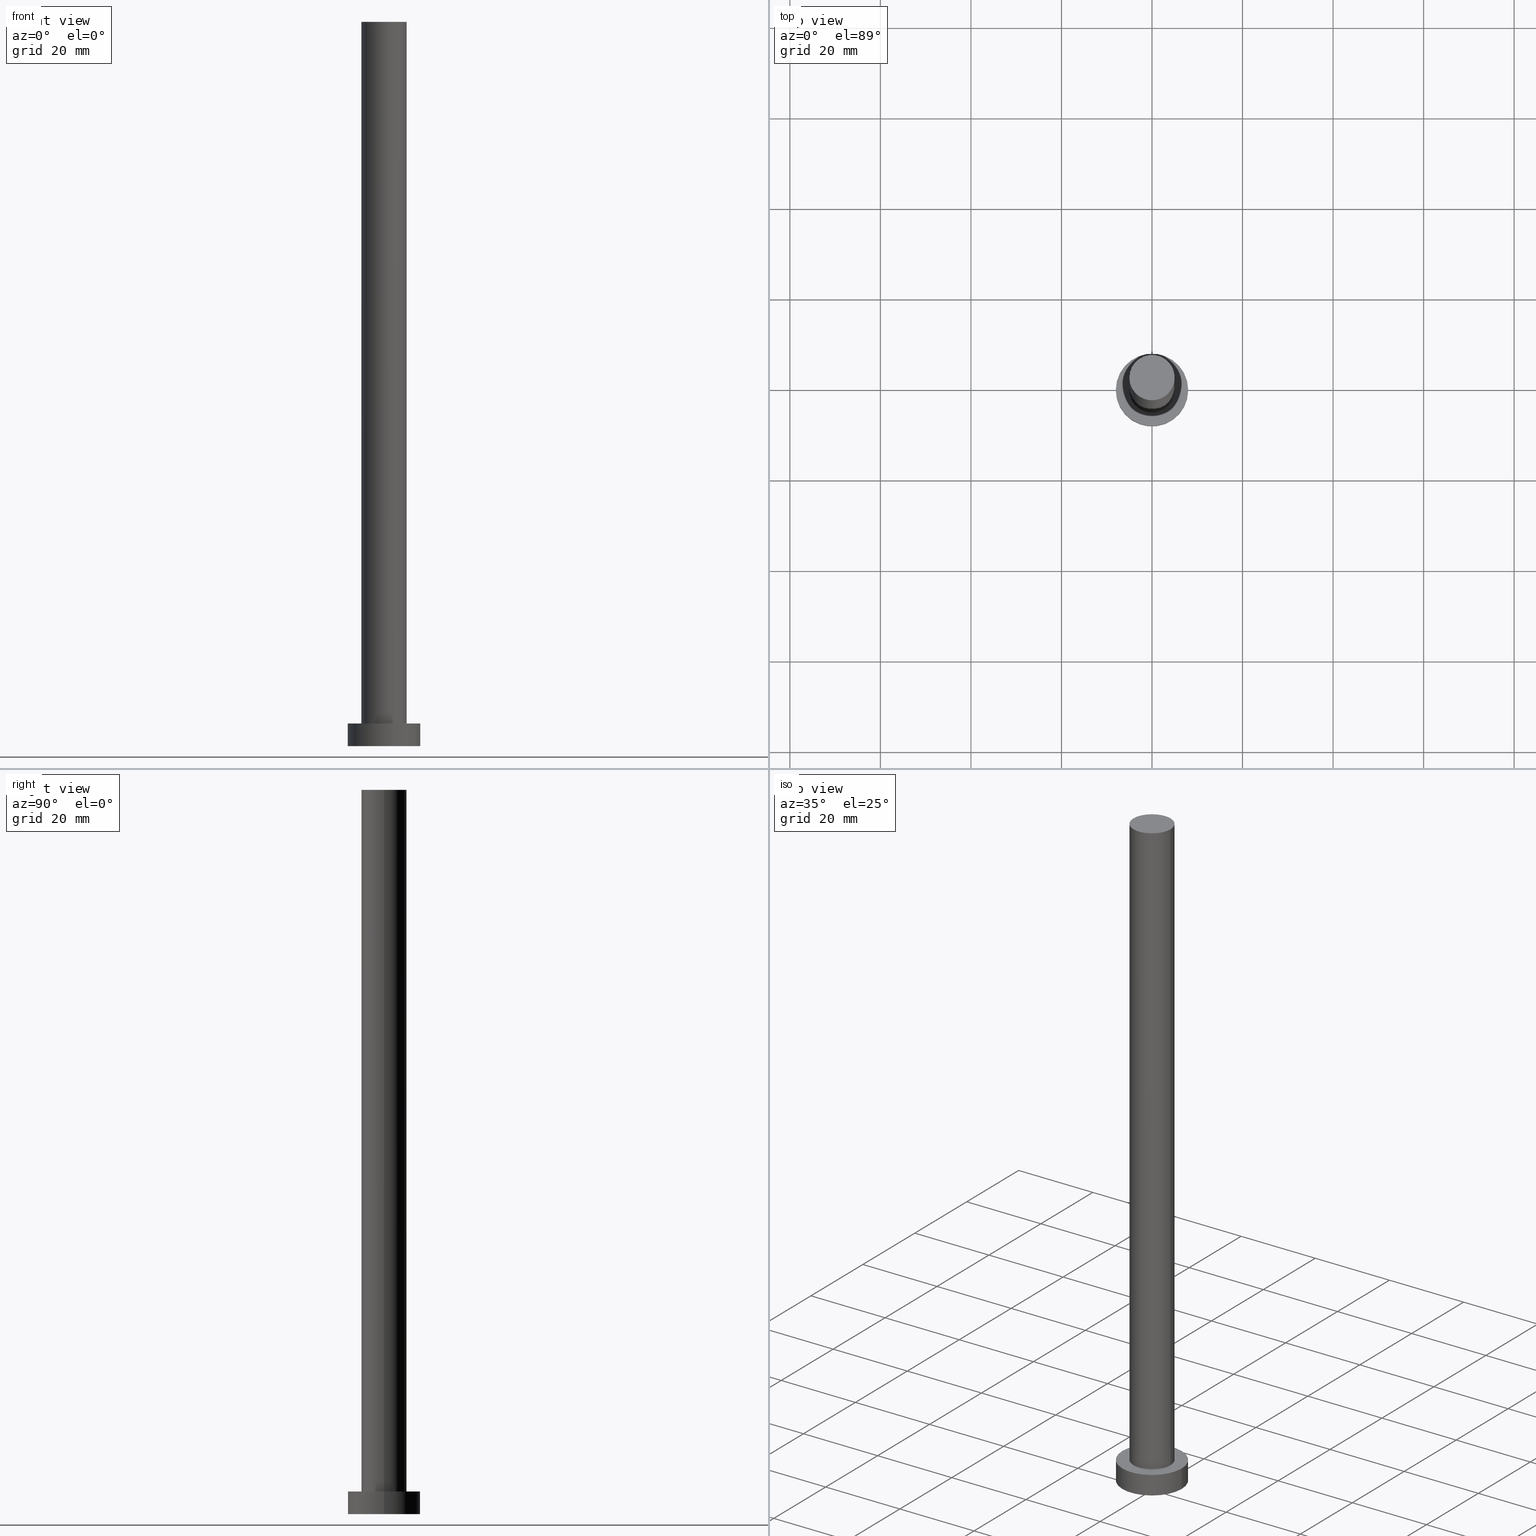
[diagram: canonical four-view strip — front | top / right | iso, engineering-drawing reading convention]
A machine part, canonical four-view strip (front | top / right | iso — engineering-drawing reading convention). The complete STEP part file that produces these views, byte-faithful:
ISO-10303-21;
HEADER;
FILE_DESCRIPTION (( 'STEP AP203' ),
    '1' );
FILE_NAME ('e7aa.STEP',
    '2023-02-13T12:07:02',
    ( '' ),
    ( '' ),
    'SwSTEP 2.0',
    'SolidWorks 2019',
    '' );
FILE_SCHEMA (( 'CONFIG_CONTROL_DESIGN' ));
ENDSEC;

DATA;
#1 = LOCAL_TIME ( 13, 7, 2.000000000000000000, #153 ) ;
#2 = DIRECTION ( 'NONE',  ( -0.000000000000000000, -0.000000000000000000, -1.000000000000000000 ) ) ;
#3 = PLANE ( 'NONE',  #34 ) ;
#4 = CARTESIAN_POINT ( 'NONE',  ( 0.000000000000000000, 0.000000000000000000, 5.000000000000000000 ) ) ;
#5 = CYLINDRICAL_SURFACE ( 'NONE', #172, 8.000000000000000000 ) ;
#6 = EDGE_LOOP ( 'NONE', ( #243, #186, #138, #253 ) ) ;
#7 = CC_DESIGN_APPROVAL ( #93, ( #249 ) ) ;
#8 = APPROVAL_STATUS ( 'not_yet_approved' ) ;
#9 = APPROVAL_ROLE ( '' ) ;
#10 = AXIS2_PLACEMENT_3D ( 'NONE', #21, #143, #208 ) ;
#11 = DIRECTION ( 'NONE',  ( 0.000000000000000000, 0.000000000000000000, 1.000000000000000000 ) ) ;
#12 = VECTOR ( 'NONE', #132, 1000.000000000000000 ) ;
#13 = ADVANCED_BREP_SHAPE_REPRESENTATION ( 'e7aa', ( #100, #202 ), #145 ) ;
#14 = DIRECTION ( 'NONE',  ( 1.000000000000000000, 0.000000000000000000, 0.000000000000000000 ) ) ;
#15 = APPROVAL_ROLE ( '' ) ;
#16 = VERTEX_POINT ( 'NONE', #199 ) ;
#17 = ORIENTED_EDGE ( 'NONE', *, *, #79, .F. ) ;
#18 = DATE_TIME_ROLE ( 'classification_date' ) ;
#19 = SECURITY_CLASSIFICATION_LEVEL ( 'unclassified' ) ;
#20 = EDGE_CURVE ( 'NONE', #16, #160, #62, .T. ) ;
#21 = CARTESIAN_POINT ( 'NONE',  ( 0.000000000000000000, 0.000000000000000000, 160.0000000000000000 ) ) ;
#22 = VECTOR ( 'NONE', #220, 1000.000000000000000 ) ;
#23 = CARTESIAN_POINT ( 'NONE',  ( -8.000000000000000000, 0.000000000000000000, 0.000000000000000000 ) ) ;
#24 = VERTEX_POINT ( 'NONE', #23 ) ;
#25 = ADVANCED_FACE ( 'NONE', ( #225 ), #60, .T. ) ;
#26 = FACE_OUTER_BOUND ( 'NONE', #128, .T. ) ;
#27 = CLOSED_SHELL ( 'NONE', ( #46, #32, #25, #61, #206, #106, #156 ) ) ;
#28 = ORIENTED_EDGE ( 'NONE', *, *, #77, .F. ) ;
#29 = PERSON_AND_ORGANIZATION_ROLE ( 'design_owner' ) ;
#30 = CARTESIAN_POINT ( 'NONE',  ( -5.000000000000000888, 0.000000000000000000, 160.0000000000000000 ) ) ;
#31 = CARTESIAN_POINT ( 'NONE',  ( 0.000000000000000000, 0.000000000000000000, 160.0000000000000000 ) ) ;
#32 = ADVANCED_FACE ( 'NONE', ( #44 ), #5, .T. ) ;
#33 = DATE_TIME_ROLE ( 'creation_date' ) ;
#34 = AXIS2_PLACEMENT_3D ( 'NONE', #66, #83, #221 ) ;
#35 = ORIENTED_EDGE ( 'NONE', *, *, #71, .F. ) ;
#36 = DATE_AND_TIME ( #175, #133 ) ;
#37 = PERSON_AND_ORGANIZATION ( #185, #90 ) ;
#38 = EDGE_CURVE ( 'NONE', #122, #124, #76, .T. ) ;
#39 = CIRCLE ( 'NONE', #149, 8.000000000000000000 ) ;
#40 = CARTESIAN_POINT ( 'NONE',  ( 0.000000000000000000, 0.000000000000000000, 160.0000000000000000 ) ) ;
#41 = EDGE_LOOP ( 'NONE', ( #17, #154, #101, #121 ) ) ;
#42 = DIRECTION ( 'NONE',  ( -0.000000000000000000, -0.000000000000000000, -1.000000000000000000 ) ) ;
#43 = LOCAL_TIME ( 13, 7, 2.000000000000000000, #55 ) ;
#44 = FACE_OUTER_BOUND ( 'NONE', #73, .T. ) ;
#45 = CARTESIAN_POINT ( 'NONE',  ( -8.000000000000000000, 0.000000000000000000, 5.000000000000000000 ) ) ;
#46 = ADVANCED_FACE ( 'NONE', ( #146 ), #162, .T. ) ;
#47 = DIRECTION ( 'NONE',  ( -0.000000000000000000, -0.000000000000000000, -1.000000000000000000 ) ) ;
#48 =( NAMED_UNIT ( * ) PLANE_ANGLE_UNIT ( ) SI_UNIT ( $, .RADIAN. ) );
#49 = CARTESIAN_POINT ( 'NONE',  ( -5.000000000000000888, 0.000000000000000000, 5.000000000000000000 ) ) ;
#50 = CC_DESIGN_APPROVAL ( #211, ( #78 ) ) ;
#51 = DIRECTION ( 'NONE',  ( 0.000000000000000000, 0.000000000000000000, 1.000000000000000000 ) ) ;
#52 = PRODUCT_DEFINITION_SHAPE ( 'NONE', 'NONE',  #249 ) ;
#53 = CIRCLE ( 'NONE', #200, 8.000000000000000000 ) ;
#54 = AXIS2_PLACEMENT_3D ( 'NONE', #148, #134, #114 ) ;
#55 = COORDINATED_UNIVERSAL_TIME_OFFSET ( 1, 0, .AHEAD. ) ;
#56 = EDGE_LOOP ( 'NONE', ( #87, #110 ) ) ;
#57 = APPROVAL_DATE_TIME ( #36, #65 ) ;
#58 = CC_DESIGN_SECURITY_CLASSIFICATION ( #78, ( #191 ) ) ;
#59 = CARTESIAN_POINT ( 'NONE',  ( 0.000000000000000000, 0.000000000000000000, 0.000000000000000000 ) ) ;
#60 = CYLINDRICAL_SURFACE ( 'NONE', #231, 8.000000000000000000 ) ;
#61 = ADVANCED_FACE ( 'NONE', ( #224, #26 ), #3, .T. ) ;
#62 = LINE ( 'NONE', #129, #163 ) ;
#63 = AXIS2_PLACEMENT_3D ( 'NONE', #31, #227, #151 ) ;
#64 = ORIENTED_EDGE ( 'NONE', *, *, #79, .T. ) ;
#65 = APPROVAL ( #193, 'NEUR�EN�' ) ;
#66 = CARTESIAN_POINT ( 'NONE',  ( 0.000000000000000000, 0.000000000000000000, 5.000000000000000000 ) ) ;
#67 = CARTESIAN_POINT ( 'NONE',  ( 8.000000000000000000, 9.797174393178825657E-16, 5.000000000000000000 ) ) ;
#68 = COORDINATED_UNIVERSAL_TIME_OFFSET ( 1, 0, .AHEAD. ) ;
#69 = DIRECTION ( 'NONE',  ( 0.000000000000000000, 0.000000000000000000, 1.000000000000000000 ) ) ;
#70 = FACE_OUTER_BOUND ( 'NONE', #241, .T. ) ;
#71 = EDGE_CURVE ( 'NONE', #180, #24, #212, .T. ) ;
#72 = PERSON_AND_ORGANIZATION_ROLE ( 'classification_officer' ) ;
#73 = EDGE_LOOP ( 'NONE', ( #255, #105, #234, #28 ) ) ;
#74 = APPROVAL_ROLE ( '' ) ;
#75 = DATE_AND_TIME ( #195, #223 ) ;
#76 = CIRCLE ( 'NONE', #94, 8.000000000000000000 ) ;
#77 = EDGE_CURVE ( 'NONE', #124, #24, #142, .T. ) ;
#78 = SECURITY_CLASSIFICATION ( '', '', #19 ) ;
#79 = EDGE_CURVE ( 'NONE', #16, #176, #167, .T. ) ;
#80 = CC_DESIGN_PERSON_AND_ORGANIZATION_ASSIGNMENT ( #196, #251, ( #191 ) ) ;
#81 = DIRECTION ( 'NONE',  ( -1.000000000000000000, 0.000000000000000000, 0.000000000000000000 ) ) ;
#82 = AXIS2_PLACEMENT_3D ( 'NONE', #169, #11, #111 ) ;
#83 = DIRECTION ( 'NONE',  ( 0.000000000000000000, 0.000000000000000000, 1.000000000000000000 ) ) ;
#84 = DIRECTION ( 'NONE',  ( 1.000000000000000000, 0.000000000000000000, 0.000000000000000000 ) ) ;
#85 = CARTESIAN_POINT ( 'NONE',  ( 0.000000000000000000, 0.000000000000000000, 5.000000000000000000 ) ) ;
#86 = EDGE_CURVE ( 'NONE', #124, #122, #53, .T. ) ;
#87 = ORIENTED_EDGE ( 'NONE', *, *, #236, .F. ) ;
#88 = DIRECTION ( 'NONE',  ( 0.000000000000000000, 0.000000000000000000, 1.000000000000000000 ) ) ;
#89 = FACE_OUTER_BOUND ( 'NONE', #117, .T. ) ;
#90 = ORGANIZATION ( 'NEUR�EN�', 'NEUR�EN�', '' ) ;
#91 = DIRECTION ( 'NONE',  ( 1.000000000000000000, 0.000000000000000000, -0.000000000000000000 ) ) ;
#92 =( LENGTH_UNIT ( ) NAMED_UNIT ( * ) SI_UNIT ( .MILLI., .METRE. ) );
#93 = APPROVAL ( #8, 'NEUR�EN�' ) ;
#94 = AXIS2_PLACEMENT_3D ( 'NONE', #182, #165, #204 ) ;
#95 = COORDINATED_UNIVERSAL_TIME_OFFSET ( 1, 0, .AHEAD. ) ;
#96 = APPROVAL_PERSON_ORGANIZATION ( #155, #65, #15 ) ;
#97 = DATE_AND_TIME ( #120, #43 ) ;
#98 = PRODUCT ( 'e7aa', 'e7aa', '', ( #152 ) ) ;
#99 = ORIENTED_EDGE ( 'NONE', *, *, #141, .F. ) ;
#100 = MANIFOLD_SOLID_BREP ( 'P�idat vysunut�m3', #27 ) ;
#101 = ORIENTED_EDGE ( 'NONE', *, *, #250, .T. ) ;
#102 = APPROVAL_STATUS ( 'not_yet_approved' ) ;
#103 = DATE_AND_TIME ( #136, #1 ) ;
#104 = CC_DESIGN_PERSON_AND_ORGANIZATION_ASSIGNMENT ( #37, #72, ( #78 ) ) ;
#105 = ORIENTED_EDGE ( 'NONE', *, *, #118, .T. ) ;
#106 = ADVANCED_FACE ( 'NONE', ( #242 ), #161, .T. ) ;
#107 = DIRECTION ( 'NONE',  ( -0.000000000000000000, -0.000000000000000000, -1.000000000000000000 ) ) ;
#108 = ORIENTED_EDGE ( 'NONE', *, *, #118, .F. ) ;
#109 = ORIENTED_EDGE ( 'NONE', *, *, #141, .T. ) ;
#110 = ORIENTED_EDGE ( 'NONE', *, *, #250, .F. ) ;
#111 = DIRECTION ( 'NONE',  ( 1.000000000000000000, 0.000000000000000000, 0.000000000000000000 ) ) ;
#112 = DIRECTION ( 'NONE',  ( 1.000000000000000000, 0.000000000000000000, 0.000000000000000000 ) ) ;
#113 = APPROVAL_PERSON_ORGANIZATION ( #157, #211, #74 ) ;
#114 = DIRECTION ( 'NONE',  ( 1.000000000000000000, 0.000000000000000000, 0.000000000000000000 ) ) ;
#115 = CC_DESIGN_DATE_AND_TIME_ASSIGNMENT ( #97, #33, ( #249 ) ) ;
#116 = PERSON_AND_ORGANIZATION ( #185, #90 ) ;
#117 = EDGE_LOOP ( 'NONE', ( #99, #35 ) ) ;
#118 = EDGE_CURVE ( 'NONE', #122, #180, #203, .T. ) ;
#119 = COORDINATED_UNIVERSAL_TIME_OFFSET ( 1, 0, .AHEAD. ) ;
#120 = CALENDAR_DATE ( 2023, 13, 2 ) ;
#121 = ORIENTED_EDGE ( 'NONE', *, *, #178, .F. ) ;
#122 = VERTEX_POINT ( 'NONE', #189 ) ;
#123 = CC_DESIGN_DATE_AND_TIME_ASSIGNMENT ( #75, #18, ( #78 ) ) ;
#124 = VERTEX_POINT ( 'NONE', #190 ) ;
#125 = DIRECTION ( 'NONE',  ( 1.000000000000000000, 0.000000000000000000, 0.000000000000000000 ) ) ;
#126 = APPROVAL_PERSON_ORGANIZATION ( #188, #93, #9 ) ;
#127 = DIRECTION ( 'NONE',  ( -1.000000000000000000, 0.000000000000000000, 0.000000000000000000 ) ) ;
#128 = EDGE_LOOP ( 'NONE', ( #197, #237 ) ) ;
#129 = CARTESIAN_POINT ( 'NONE',  ( 5.000000000000000888, 6.123233995736767268E-16, 160.0000000000000000 ) ) ;
#130 = CARTESIAN_POINT ( 'NONE',  ( 0.000000000000000000, 0.000000000000000000, 5.000000000000000000 ) ) ;
#131 = CARTESIAN_POINT ( 'NONE',  ( 8.000000000000000000, 9.797174393178825657E-16, 0.000000000000000000 ) ) ;
#132 = DIRECTION ( 'NONE',  ( -0.000000000000000000, -0.000000000000000000, -1.000000000000000000 ) ) ;
#133 = LOCAL_TIME ( 13, 7, 2.000000000000000000, #95 ) ;
#134 = DIRECTION ( 'NONE',  ( 0.000000000000000000, 0.000000000000000000, 1.000000000000000000 ) ) ;
#135 = AXIS2_PLACEMENT_3D ( 'NONE', #59, #147, #125 ) ;
#136 = CALENDAR_DATE ( 2023, 13, 2 ) ;
#137 = APPROVAL_DATE_TIME ( #218, #93 ) ;
#138 = ORIENTED_EDGE ( 'NONE', *, *, #178, .T. ) ;
#139 = SHAPE_DEFINITION_REPRESENTATION ( #52, #13 ) ;
#140 = CC_DESIGN_PERSON_AND_ORGANIZATION_ASSIGNMENT ( #210, #29, ( #98 ) ) ;
#141 = EDGE_CURVE ( 'NONE', #24, #180, #39, .T. ) ;
#142 = LINE ( 'NONE', #45, #22 ) ;
#143 = DIRECTION ( 'NONE',  ( -0.000000000000000000, -0.000000000000000000, -1.000000000000000000 ) ) ;
#144 = CARTESIAN_POINT ( 'NONE',  ( 0.000000000000000000, 0.000000000000000000, 5.000000000000000000 ) ) ;
#145 =( GEOMETRIC_REPRESENTATION_CONTEXT ( 3 ) GLOBAL_UNCERTAINTY_ASSIGNED_CONTEXT ( ( #219 ) ) GLOBAL_UNIT_ASSIGNED_CONTEXT ( ( #92, #48, #226 ) ) REPRESENTATION_CONTEXT ( 'NONE', 'WORKASPACE' ) );
#146 = FACE_OUTER_BOUND ( 'NONE', #41, .T. ) ;
#147 = DIRECTION ( 'NONE',  ( 0.000000000000000000, 0.000000000000000000, 1.000000000000000000 ) ) ;
#148 = CARTESIAN_POINT ( 'NONE',  ( 0.000000000000000000, 0.000000000000000000, 5.000000000000000000 ) ) ;
#149 = AXIS2_PLACEMENT_3D ( 'NONE', #214, #69, #14 ) ;
#150 = APPLICATION_PROTOCOL_DEFINITION ( 'international standard', 'config_control_design', 1994, #192 ) ;
#151 = DIRECTION ( 'NONE',  ( 1.000000000000000000, 0.000000000000000000, -0.000000000000000000 ) ) ;
#152 = MECHANICAL_CONTEXT ( 'NONE', #192, 'mechanical' ) ;
#153 = COORDINATED_UNIVERSAL_TIME_OFFSET ( 1, 0, .AHEAD. ) ;
#154 = ORIENTED_EDGE ( 'NONE', *, *, #20, .T. ) ;
#155 = PERSON_AND_ORGANIZATION ( #185, #90 ) ;
#156 = ADVANCED_FACE ( 'NONE', ( #70 ), #230, .T. ) ;
#157 = PERSON_AND_ORGANIZATION ( #185, #90 ) ;
#158 = EDGE_LOOP ( 'NONE', ( #108, #198, #179, #109 ) ) ;
#159 = DIRECTION ( 'NONE',  ( -0.000000000000000000, -0.000000000000000000, -1.000000000000000000 ) ) ;
#160 = VERTEX_POINT ( 'NONE', #247 ) ;
#161 = CYLINDRICAL_SURFACE ( 'NONE', #194, 5.000000000000000888 ) ;
#162 = CYLINDRICAL_SURFACE ( 'NONE', #10, 5.000000000000000888 ) ;
#163 = VECTOR ( 'NONE', #2, 1000.000000000000000 ) ;
#164 = CIRCLE ( 'NONE', #82, 5.000000000000000888 ) ;
#165 = DIRECTION ( 'NONE',  ( 0.000000000000000000, 0.000000000000000000, 1.000000000000000000 ) ) ;
#166 = CARTESIAN_POINT ( 'NONE',  ( 0.000000000000000000, 0.000000000000000000, 0.000000000000000000 ) ) ;
#167 = CIRCLE ( 'NONE', #209, 5.000000000000000888 ) ;
#168 = AXIS2_PLACEMENT_3D ( 'NONE', #166, #88, #91 ) ;
#169 = CARTESIAN_POINT ( 'NONE',  ( 0.000000000000000000, 0.000000000000000000, 160.0000000000000000 ) ) ;
#170 = PLANE ( 'NONE',  #168 ) ;
#171 = CARTESIAN_POINT ( 'NONE',  ( -5.000000000000000888, 0.000000000000000000, 160.0000000000000000 ) ) ;
#172 = AXIS2_PLACEMENT_3D ( 'NONE', #85, #159, #240 ) ;
#173 = PERSON_AND_ORGANIZATION_ROLE ( 'creator' ) ;
#174 = PERSON_AND_ORGANIZATION_ROLE ( 'creator' ) ;
#175 = CALENDAR_DATE ( 2023, 13, 2 ) ;
#176 = VERTEX_POINT ( 'NONE', #30 ) ;
#177 = APPROVAL_DATE_TIME ( #103, #211 ) ;
#178 = EDGE_CURVE ( 'NONE', #176, #217, #215, .T. ) ;
#179 = ORIENTED_EDGE ( 'NONE', *, *, #77, .T. ) ;
#180 = VERTEX_POINT ( 'NONE', #131 ) ;
#181 = PRODUCT_RELATED_PRODUCT_CATEGORY ( 'detail', '', ( #98 ) ) ;
#182 = CARTESIAN_POINT ( 'NONE',  ( 0.000000000000000000, 0.000000000000000000, 5.000000000000000000 ) ) ;
#183 = DIRECTION ( 'NONE',  ( 1.000000000000000000, 0.000000000000000000, 0.000000000000000000 ) ) ;
#184 = DIRECTION ( 'NONE',  ( 0.000000000000000000, 0.000000000000000000, 1.000000000000000000 ) ) ;
#185 = PERSON ( 'NEUR�EN�', 'NEUR�EN�', 'NEUR�EN�', ('NEUR�EN�'), ('NEUR�EN�'), ('NEUR�EN�') ) ;
#186 = ORIENTED_EDGE ( 'NONE', *, *, #216, .F. ) ;
#187 = CIRCLE ( 'NONE', #54, 5.000000000000000888 ) ;
#188 = PERSON_AND_ORGANIZATION ( #185, #90 ) ;
#189 = CARTESIAN_POINT ( 'NONE',  ( 8.000000000000000000, 9.797174393178825657E-16, 5.000000000000000000 ) ) ;
#190 = CARTESIAN_POINT ( 'NONE',  ( -8.000000000000000000, 0.000000000000000000, 5.000000000000000000 ) ) ;
#191 = PRODUCT_DEFINITION_FORMATION_WITH_SPECIFIED_SOURCE ( 'LIBOVOLN�', '', #98, .NOT_KNOWN. ) ;
#192 = APPLICATION_CONTEXT ( 'configuration controlled 3d designs of mechanical parts and assemblies' ) ;
#193 = APPROVAL_STATUS ( 'not_yet_approved' ) ;
#194 = AXIS2_PLACEMENT_3D ( 'NONE', #222, #42, #127 ) ;
#195 = CALENDAR_DATE ( 2023, 13, 2 ) ;
#196 = PERSON_AND_ORGANIZATION ( #185, #90 ) ;
#197 = ORIENTED_EDGE ( 'NONE', *, *, #86, .T. ) ;
#198 = ORIENTED_EDGE ( 'NONE', *, *, #86, .F. ) ;
#199 = CARTESIAN_POINT ( 'NONE',  ( 5.000000000000000888, 6.123233995736767268E-16, 160.0000000000000000 ) ) ;
#200 = AXIS2_PLACEMENT_3D ( 'NONE', #4, #184, #84 ) ;
#201 = DIRECTION ( 'NONE',  ( 0.000000000000000000, 0.000000000000000000, 1.000000000000000000 ) ) ;
#202 = AXIS2_PLACEMENT_3D ( 'NONE', #244, #245, #248 ) ;
#203 = LINE ( 'NONE', #67, #12 ) ;
#204 = DIRECTION ( 'NONE',  ( 1.000000000000000000, 0.000000000000000000, 0.000000000000000000 ) ) ;
#205 = CC_DESIGN_PERSON_AND_ORGANIZATION_ASSIGNMENT ( #116, #174, ( #249 ) ) ;
#206 = ADVANCED_FACE ( 'NONE', ( #89 ), #170, .F. ) ;
#207 = DESIGN_CONTEXT ( 'detailed design', #229, 'design' ) ;
#208 = DIRECTION ( 'NONE',  ( -1.000000000000000000, 0.000000000000000000, 0.000000000000000000 ) ) ;
#209 = AXIS2_PLACEMENT_3D ( 'NONE', #40, #201, #183 ) ;
#210 = PERSON_AND_ORGANIZATION ( #185, #90 ) ;
#211 = APPROVAL ( #102, 'NEUR�EN�' ) ;
#212 = CIRCLE ( 'NONE', #135, 8.000000000000000000 ) ;
#213 = AXIS2_PLACEMENT_3D ( 'NONE', #130, #51, #112 ) ;
#214 = CARTESIAN_POINT ( 'NONE',  ( 0.000000000000000000, 0.000000000000000000, 0.000000000000000000 ) ) ;
#215 = LINE ( 'NONE', #171, #246 ) ;
#216 = EDGE_CURVE ( 'NONE', #176, #16, #164, .T. ) ;
#217 = VERTEX_POINT ( 'NONE', #49 ) ;
#218 = DATE_AND_TIME ( #254, #239 ) ;
#219 = UNCERTAINTY_MEASURE_WITH_UNIT (LENGTH_MEASURE( 1.000000000000000082E-05 ), #92, 'distance_accuracy_value', 'NONE');
#220 = DIRECTION ( 'NONE',  ( -0.000000000000000000, -0.000000000000000000, -1.000000000000000000 ) ) ;
#221 = DIRECTION ( 'NONE',  ( 1.000000000000000000, 0.000000000000000000, -0.000000000000000000 ) ) ;
#222 = CARTESIAN_POINT ( 'NONE',  ( 0.000000000000000000, 0.000000000000000000, 160.0000000000000000 ) ) ;
#223 = LOCAL_TIME ( 13, 7, 2.000000000000000000, #119 ) ;
#224 = FACE_BOUND ( 'NONE', #56, .T. ) ;
#225 = FACE_OUTER_BOUND ( 'NONE', #158, .T. ) ;
#226 =( NAMED_UNIT ( * ) SI_UNIT ( $, .STERADIAN. ) SOLID_ANGLE_UNIT ( ) );
#227 = DIRECTION ( 'NONE',  ( 0.000000000000000000, 0.000000000000000000, 1.000000000000000000 ) ) ;
#228 = CC_DESIGN_PERSON_AND_ORGANIZATION_ASSIGNMENT ( #252, #173, ( #191 ) ) ;
#229 = APPLICATION_CONTEXT ( 'configuration controlled 3d designs of mechanical parts and assemblies' ) ;
#230 = PLANE ( 'NONE',  #63 ) ;
#231 = AXIS2_PLACEMENT_3D ( 'NONE', #144, #107, #81 ) ;
#232 = CC_DESIGN_APPROVAL ( #65, ( #191 ) ) ;
#233 = APPLICATION_PROTOCOL_DEFINITION ( 'international standard', 'config_control_design', 1994, #229 ) ;
#234 = ORIENTED_EDGE ( 'NONE', *, *, #71, .T. ) ;
#235 = CIRCLE ( 'NONE', #213, 5.000000000000000888 ) ;
#236 = EDGE_CURVE ( 'NONE', #217, #160, #187, .T. ) ;
#237 = ORIENTED_EDGE ( 'NONE', *, *, #38, .T. ) ;
#238 = ORIENTED_EDGE ( 'NONE', *, *, #216, .T. ) ;
#239 = LOCAL_TIME ( 13, 7, 2.000000000000000000, #68 ) ;
#240 = DIRECTION ( 'NONE',  ( -1.000000000000000000, 0.000000000000000000, 0.000000000000000000 ) ) ;
#241 = EDGE_LOOP ( 'NONE', ( #238, #64 ) ) ;
#242 = FACE_OUTER_BOUND ( 'NONE', #6, .T. ) ;
#243 = ORIENTED_EDGE ( 'NONE', *, *, #20, .F. ) ;
#244 = CARTESIAN_POINT ( 'NONE',  ( 0.000000000000000000, 0.000000000000000000, 0.000000000000000000 ) ) ;
#245 = DIRECTION ( 'NONE',  ( 0.000000000000000000, 0.000000000000000000, 1.000000000000000000 ) ) ;
#246 = VECTOR ( 'NONE', #47, 1000.000000000000000 ) ;
#247 = CARTESIAN_POINT ( 'NONE',  ( 5.000000000000000888, 6.123233995736767268E-16, 5.000000000000000000 ) ) ;
#248 = DIRECTION ( 'NONE',  ( 1.000000000000000000, 0.000000000000000000, 0.000000000000000000 ) ) ;
#249 = PRODUCT_DEFINITION ( 'NEZN�M�', '', #191, #207 ) ;
#250 = EDGE_CURVE ( 'NONE', #160, #217, #235, .T. ) ;
#251 = PERSON_AND_ORGANIZATION_ROLE ( 'design_supplier' ) ;
#252 = PERSON_AND_ORGANIZATION ( #185, #90 ) ;
#253 = ORIENTED_EDGE ( 'NONE', *, *, #236, .T. ) ;
#254 = CALENDAR_DATE ( 2023, 13, 2 ) ;
#255 = ORIENTED_EDGE ( 'NONE', *, *, #38, .F. ) ;
ENDSEC;
END-ISO-10303-21;
